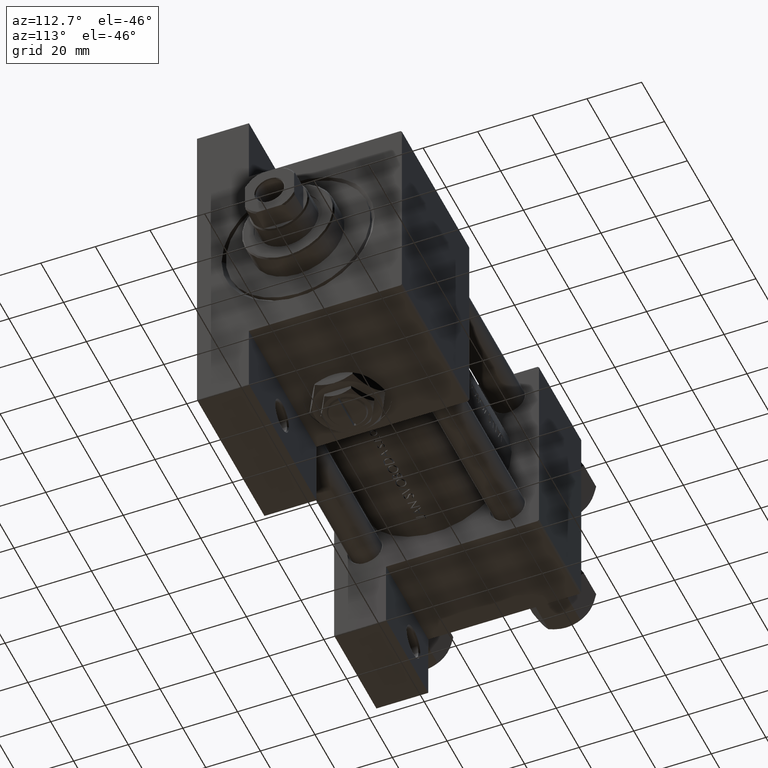
[diagram: clean part render]
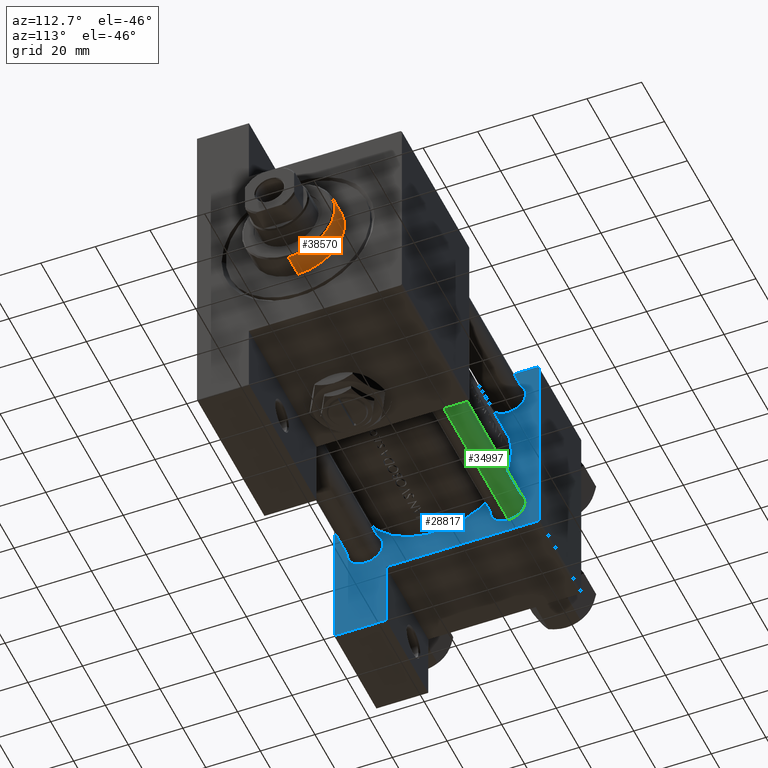
[diagram: same view with three faces highlighted in distinct colors, each labeled with its STEP entity id]
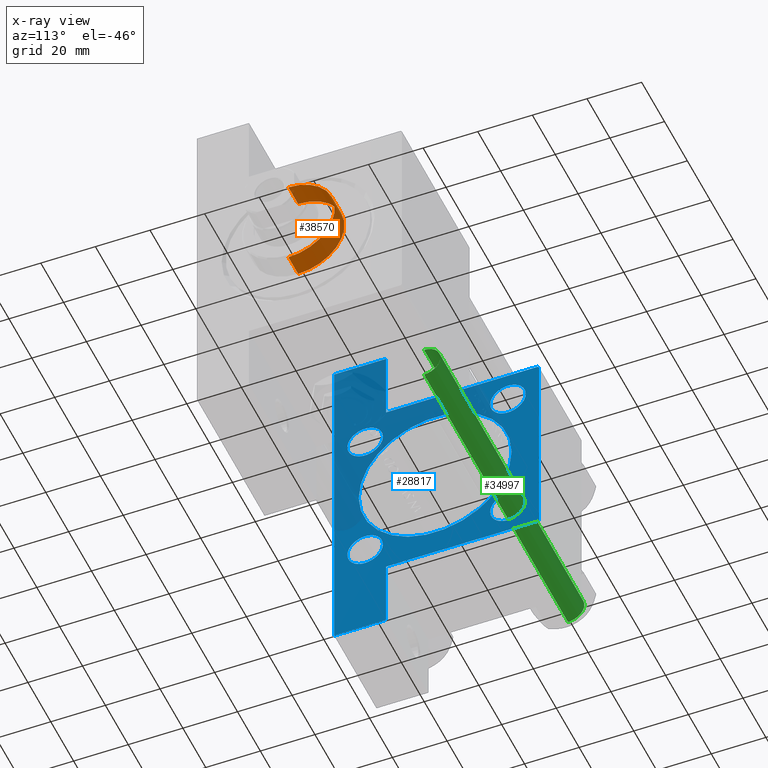
[diagram: x-ray of the same camera — body ghosted, the three highlighted faces saturated]
A machine part, auxiliary view with three faces highlighted in distinct colors.
The next image is the same camera in x-ray (body ghosted, the three faces saturated) — at least one of them is partly hidden behind the body in this view.
Their STEP definitions:

[orange] entity #38570 — the highlighted cylindrical surface (partial cylindrical patch) has radius 17 mm, axis along (-1, -0, 0).
#817 = ORIENTED_EDGE ( 'NONE', *, *, #44496, .F. ) ;
#1502 = CARTESIAN_POINT ( 'NONE',  ( 17.00000000000000000, 2.081899558550500280E-15, 37.69999999999999574 ) ) ;
#1532 = VERTEX_POINT ( 'NONE', #40341 ) ;
#2553 = VERTEX_POINT ( 'NONE', #3411 ) ;
#3411 = CARTESIAN_POINT ( 'NONE',  ( -17.00000000000000000, 0.000000000000000000, 37.19999999999999574 ) ) ;
#3577 = EDGE_LOOP ( 'NONE', ( #6811, #22954, #36848, #817 ) ) ;
#4502 = LINE ( 'NONE', #1502, #19860 ) ;
#6811 = ORIENTED_EDGE ( 'NONE', *, *, #14480, .T. ) ;
#7029 = LINE ( 'NONE', #41130, #27732 ) ;
#12876 = AXIS2_PLACEMENT_3D ( 'NONE', #14812, #44189, #26029 ) ;
#14480 = EDGE_CURVE ( 'NONE', #2553, #40876, #32761, .T. ) ;
#14812 = CARTESIAN_POINT ( 'NONE',  ( 0.000000000000000000, 0.000000000000000000, 37.19999999999999574 ) ) ;
#16169 = DIRECTION ( 'NONE',  ( -1.000000000000000000, 0.000000000000000000, 0.000000000000000000 ) ) ;
#18875 = VERTEX_POINT ( 'NONE', #37075 ) ;
#19410 = CYLINDRICAL_SURFACE ( 'NONE', #34600, 17.00000000000000000 ) ;
#19860 = VECTOR ( 'NONE', #35868, 1000.000000000000000 ) ;
#21727 = EDGE_CURVE ( 'NONE', #40876, #18875, #4502, .T. ) ;
#22954 = ORIENTED_EDGE ( 'NONE', *, *, #21727, .T. ) ;
#23400 = CARTESIAN_POINT ( 'NONE',  ( 0.000000000000000000, 0.000000000000000000, 37.69999999999999574 ) ) ;
#24037 = AXIS2_PLACEMENT_3D ( 'NONE', #48338, #37372, #41598 ) ;
#26029 = DIRECTION ( 'NONE',  ( 1.000000000000000000, 0.000000000000000000, 0.000000000000000000 ) ) ;
#26235 = EDGE_CURVE ( 'NONE', #18875, #1532, #27992, .T. ) ;
#26642 = CARTESIAN_POINT ( 'NONE',  ( 17.00000000000000000, 2.081899558550500280E-15, 37.19999999999999574 ) ) ;
#27732 = VECTOR ( 'NONE', #37414, 1000.000000000000000 ) ;
#27992 = CIRCLE ( 'NONE', #24037, 17.00000000000000000 ) ;
#30865 = DIRECTION ( 'NONE',  ( -0.000000000000000000, -0.000000000000000000, -1.000000000000000000 ) ) ;
#32761 = CIRCLE ( 'NONE', #12876, 17.00000000000000000 ) ;
#34592 = FACE_OUTER_BOUND ( 'NONE', #3577, .T. ) ;
#34600 = AXIS2_PLACEMENT_3D ( 'NONE', #23400, #30865, #16169 ) ;
#35868 = DIRECTION ( 'NONE',  ( -0.000000000000000000, -0.000000000000000000, -1.000000000000000000 ) ) ;
#36848 = ORIENTED_EDGE ( 'NONE', *, *, #26235, .T. ) ;
#37075 = CARTESIAN_POINT ( 'NONE',  ( 17.00000000000000000, 2.081899558550500280E-15, 28.69999999999999929 ) ) ;
#37372 = DIRECTION ( 'NONE',  ( 0.000000000000000000, 0.000000000000000000, 1.000000000000000000 ) ) ;
#37414 = DIRECTION ( 'NONE',  ( -0.000000000000000000, -0.000000000000000000, -1.000000000000000000 ) ) ;
#38570 = ADVANCED_FACE ( 'NONE', ( #34592 ), #19410, .T. ) ;
#40341 = CARTESIAN_POINT ( 'NONE',  ( -17.00000000000000000, 0.000000000000000000, 28.69999999999999929 ) ) ;
#40876 = VERTEX_POINT ( 'NONE', #26642 ) ;
#41130 = CARTESIAN_POINT ( 'NONE',  ( -17.00000000000000000, 0.000000000000000000, 37.69999999999999574 ) ) ;
#41598 = DIRECTION ( 'NONE',  ( 1.000000000000000000, 0.000000000000000000, 0.000000000000000000 ) ) ;
#44189 = DIRECTION ( 'NONE',  ( 0.000000000000000000, 0.000000000000000000, -1.000000000000000000 ) ) ;
#44496 = EDGE_CURVE ( 'NONE', #2553, #1532, #7029, .T. ) ;
#48338 = CARTESIAN_POINT ( 'NONE',  ( 0.000000000000000000, 0.000000000000000000, 28.69999999999999929 ) ) ;

[blue] entity #28817 — the highlighted planar face has unit normal (-1, 0, -0).
#40 = CIRCLE ( 'NONE', #18333, 6.500000000000057732 ) ;
#344 = AXIS2_PLACEMENT_3D ( 'NONE', #44675, #21775, #40930 ) ;
#385 = EDGE_LOOP ( 'NONE', ( #5682, #46486, #6682, #3144, #41448, #947, #35732, #32918, #8256, #8322 ) ) ;
#597 = FACE_BOUND ( 'NONE', #7028, .T. ) ;
#798 = DIRECTION ( 'NONE',  ( 0.000000000000000000, -1.734723475976806848E-16, -1.000000000000000000 ) ) ;
#914 = CIRCLE ( 'NONE', #28757, 6.499999999999981348 ) ;
#947 = ORIENTED_EDGE ( 'NONE', *, *, #48349, .F. ) ;
#1105 = ORIENTED_EDGE ( 'NONE', *, *, #37034, .T. ) ;
#1846 = VECTOR ( 'NONE', #18621, 1000.000000000000000 ) ;
#1865 = CARTESIAN_POINT ( 'NONE',  ( 37.00000000000001421, 63.50000000000000000, -18.50000000000000355 ) ) ;
#2401 = VECTOR ( 'NONE', #7654, 1000.000000000000000 ) ;
#2716 = VERTEX_POINT ( 'NONE', #1865 ) ;
#3085 = VECTOR ( 'NONE', #13676, 1000.000000000000000 ) ;
#3099 = VERTEX_POINT ( 'NONE', #31096 ) ;
#3144 = ORIENTED_EDGE ( 'NONE', *, *, #5348, .F. ) ;
#3456 = CARTESIAN_POINT ( 'NONE',  ( 37.00000000000000000, -37.50000000000000711, 37.49999999999999289 ) ) ;
#3857 = DIRECTION ( 'NONE',  ( 0.000000000000000000, -1.000000000000000000, -9.251858538542971581E-17 ) ) ;
#4008 = CARTESIAN_POINT ( 'NONE',  ( 37.00000000000000000, 36.99999999999999289, 37.50000000000000000 ) ) ;
#4219 = VERTEX_POINT ( 'NONE', #40751 ) ;
#4325 = AXIS2_PLACEMENT_3D ( 'NONE', #44187, #6343, #32992 ) ;
#4463 = EDGE_CURVE ( 'NONE', #24514, #40729, #43705, .T. ) ;
#4579 = LINE ( 'NONE', #42919, #42184 ) ;
#4836 = PLANE ( 'NONE',  #45568 ) ;
#5028 = CARTESIAN_POINT ( 'NONE',  ( 37.00000000000000000, 0.000000000000000000, -0.5000000000000004441 ) ) ;
#5078 = VERTEX_POINT ( 'NONE', #34527 ) ;
#5151 = CIRCLE ( 'NONE', #46519, 6.499999999999974243 ) ;
#5348 = EDGE_CURVE ( 'NONE', #4219, #33079, #21553, .T. ) ;
#5682 = ORIENTED_EDGE ( 'NONE', *, *, #10357, .T. ) ;
#5773 = EDGE_CURVE ( 'NONE', #3099, #19407, #4579, .T. ) ;
#5963 = LINE ( 'NONE', #9699, #3085 ) ;
#6191 = CARTESIAN_POINT ( 'NONE',  ( 37.00000000000000000, 37.49999999999999289, -37.50000000000000000 ) ) ;
#6343 = DIRECTION ( 'NONE',  ( -1.000000000000000000, 0.000000000000000000, -0.000000000000000000 ) ) ;
#6456 = EDGE_CURVE ( 'NONE', #28976, #2716, #18370, .T. ) ;
#6502 = DIRECTION ( 'NONE',  ( 0.000000000000000000, 0.000000000000000000, 1.000000000000000000 ) ) ;
#6634 = CIRCLE ( 'NONE', #26530, 28.00000000000000000 ) ;
#6682 = ORIENTED_EDGE ( 'NONE', *, *, #32625, .T. ) ;
#6915 = DIRECTION ( 'NONE',  ( -0.000000000000000000, -0.7071067811865474617, -0.7071067811865474617 ) ) ;
#6923 = DIRECTION ( 'NONE',  ( 0.000000000000000000, 9.251858538542971581E-17, -1.000000000000000000 ) ) ;
#7028 = EDGE_LOOP ( 'NONE', ( #35184, #38727 ) ) ;
#7496 = CARTESIAN_POINT ( 'NONE',  ( 37.00000000000000000, 26.14999999999999858, 26.15000000000000213 ) ) ;
#7646 = EDGE_CURVE ( 'NONE', #4219, #17229, #26976, .T. ) ;
#7654 = DIRECTION ( 'NONE',  ( 2.668805347656626678E-16, 1.000000000000000000, 0.000000000000000000 ) ) ;
#7829 = FACE_BOUND ( 'NONE', #40155, .T. ) ;
#7855 = VECTOR ( 'NONE', #6915, 1000.000000000000114 ) ;
#8256 = ORIENTED_EDGE ( 'NONE', *, *, #29578, .F. ) ;
#8322 = ORIENTED_EDGE ( 'NONE', *, *, #5773, .T. ) ;
#8863 = DIRECTION ( 'NONE',  ( -1.000000000000000000, 0.000000000000000000, -0.000000000000000000 ) ) ;
#9296 = CARTESIAN_POINT ( 'NONE',  ( 37.00000000000000000, 0.000000000000000000, 0.000000000000000000 ) ) ;
#9633 = EDGE_CURVE ( 'NONE', #5078, #48114, #40, .T. ) ;
#9699 = CARTESIAN_POINT ( 'NONE',  ( 37.00000000000001421, 63.50000000000001421, 26.72167621838005047 ) ) ;
#9844 = VERTEX_POINT ( 'NONE', #22719 ) ;
#10357 = EDGE_CURVE ( 'NONE', #19407, #24401, #45454, .T. ) ;
#10431 = DIRECTION ( 'NONE',  ( 0.000000000000000000, -1.000000000000000000, -9.251858538542972814E-17 ) ) ;
#11442 = VERTEX_POINT ( 'NONE', #17140 ) ;
#11503 = AXIS2_PLACEMENT_3D ( 'NONE', #7496, #38366, #11711 ) ;
#11561 = CARTESIAN_POINT ( 'NONE',  ( 37.00000000000000000, 26.14999999999999858, 19.65000000000002345 ) ) ;
#11711 = DIRECTION ( 'NONE',  ( 0.000000000000000000, 0.000000000000000000, 1.000000000000000000 ) ) ;
#12776 = VECTOR ( 'NONE', #3857, 1000.000000000000000 ) ;
#13207 = CARTESIAN_POINT ( 'NONE',  ( 37.00000000000000000, -37.50000000000000711, 36.99999999999999289 ) ) ;
#13447 = DIRECTION ( 'NONE',  ( 0.000000000000000000, 0.000000000000000000, 1.000000000000000000 ) ) ;
#13676 = DIRECTION ( 'NONE',  ( 0.000000000000000000, -1.734723475976806848E-16, -1.000000000000000000 ) ) ;
#14639 = CARTESIAN_POINT ( 'NONE',  ( 37.00000000000001421, 63.50000000000001421, -18.50000000000000355 ) ) ;
#15543 = ORIENTED_EDGE ( 'NONE', *, *, #4463, .T. ) ;
#15783 = FACE_OUTER_BOUND ( 'NONE', #385, .T. ) ;
#16285 = DIRECTION ( 'NONE',  ( -1.000000000000000000, 0.000000000000000000, -0.000000000000000000 ) ) ;
#16298 = EDGE_LOOP ( 'NONE', ( #42937, #15543 ) ) ;
#16543 = EDGE_CURVE ( 'NONE', #24401, #29102, #44770, .T. ) ;
#17140 = CARTESIAN_POINT ( 'NONE',  ( 37.00000000000000000, 26.14999999999999858, -32.64999999999997726 ) ) ;
#17229 = VERTEX_POINT ( 'NONE', #36997 ) ;
#17297 = DIRECTION ( 'NONE',  ( -1.000000000000000000, 0.000000000000000000, -0.000000000000000000 ) ) ;
#17372 = CARTESIAN_POINT ( 'NONE',  ( 37.00000000000000000, -37.50000000000000711, 36.99999999999999289 ) ) ;
#18203 = CARTESIAN_POINT ( 'NONE',  ( 37.00000000000000000, 0.000000000000000000, 27.50000000000000000 ) ) ;
#18333 = AXIS2_PLACEMENT_3D ( 'NONE', #34945, #31470, #30504 ) ;
#18370 = LINE ( 'NONE', #14639, #2401 ) ;
#18621 = DIRECTION ( 'NONE',  ( 0.000000000000000000, 0.000000000000000000, -1.000000000000000000 ) ) ;
#18703 = DIRECTION ( 'NONE',  ( -1.000000000000000000, 0.000000000000000000, -0.000000000000000000 ) ) ;
#18720 = AXIS2_PLACEMENT_3D ( 'NONE', #5028, #32636, #13447 ) ;
#18739 = CARTESIAN_POINT ( 'NONE',  ( 37.00000000000000711, 37.50000000000000711, -18.50000000000000355 ) ) ;
#18937 = CARTESIAN_POINT ( 'NONE',  ( 37.00000000000000000, 26.14999999999999858, 26.15000000000000213 ) ) ;
#19407 = VERTEX_POINT ( 'NONE', #4008 ) ;
#19574 = DIRECTION ( 'NONE',  ( 0.000000000000000000, 0.000000000000000000, 1.000000000000000000 ) ) ;
#19731 = CARTESIAN_POINT ( 'NONE',  ( 37.00000000000000000, -37.00000000000000711, 37.49999999999999289 ) ) ;
#21553 = LINE ( 'NONE', #36480, #31806 ) ;
#21775 = DIRECTION ( 'NONE',  ( -1.000000000000000000, 0.000000000000000000, -0.000000000000000000 ) ) ;
#22253 = AXIS2_PLACEMENT_3D ( 'NONE', #36234, #17297, #40431 ) ;
#22362 = LINE ( 'NONE', #33308, #1846 ) ;
#22719 = CARTESIAN_POINT ( 'NONE',  ( 37.00000000000001421, 63.50000000000000000, -37.50000000000002132 ) ) ;
#23030 = FACE_BOUND ( 'NONE', #34804, .T. ) ;
#23481 = CIRCLE ( 'NONE', #18720, 28.00000000000000000 ) ;
#23753 = DIRECTION ( 'NONE',  ( 0.000000000000000000, -0.7071067811865474617, 0.7071067811865474617 ) ) ;
#24164 = ORIENTED_EDGE ( 'NONE', *, *, #36481, .T. ) ;
#24256 = VERTEX_POINT ( 'NONE', #43674 ) ;
#24401 = VERTEX_POINT ( 'NONE', #19731 ) ;
#24514 = VERTEX_POINT ( 'NONE', #32178 ) ;
#26096 = CARTESIAN_POINT ( 'NONE',  ( 37.00000000000000000, 0.000000000000000000, -0.5000000000000004441 ) ) ;
#26106 = LINE ( 'NONE', #3456, #36130 ) ;
#26164 = EDGE_CURVE ( 'NONE', #39891, #36252, #914, .T. ) ;
#26434 = CARTESIAN_POINT ( 'NONE',  ( 37.00000000000000000, -37.50000000000000000, -18.50000000000000355 ) ) ;
#26530 = AXIS2_PLACEMENT_3D ( 'NONE', #26096, #33814, #41258 ) ;
#26625 = AXIS2_PLACEMENT_3D ( 'NONE', #35498, #42976, #19574 ) ;
#26821 = DIRECTION ( 'NONE',  ( 0.000000000000000000, 0.000000000000000000, 1.000000000000000000 ) ) ;
#26976 = LINE ( 'NONE', #27964, #31768 ) ;
#27516 = ORIENTED_EDGE ( 'NONE', *, *, #26164, .T. ) ;
#27552 = CARTESIAN_POINT ( 'NONE',  ( 37.00000000000000000, 26.14999999999999858, -26.15000000000000213 ) ) ;
#27964 = CARTESIAN_POINT ( 'NONE',  ( 37.00000000000000000, -63.49999999999998579, 26.72167621838007889 ) ) ;
#28757 = AXIS2_PLACEMENT_3D ( 'NONE', #18937, #18703, #6502 ) ;
#28817 = ADVANCED_FACE ( 'NONE', ( #7829, #23030, #34710, #38211, #597, #15783 ), #4836, .F. ) ;
#28976 = VERTEX_POINT ( 'NONE', #18739 ) ;
#29102 = VERTEX_POINT ( 'NONE', #13207 ) ;
#29578 = EDGE_CURVE ( 'NONE', #3099, #28976, #22362, .T. ) ;
#29631 = EDGE_CURVE ( 'NONE', #24256, #46954, #6634, .T. ) ;
#30030 = ORIENTED_EDGE ( 'NONE', *, *, #9633, .T. ) ;
#30504 = DIRECTION ( 'NONE',  ( 0.000000000000000000, 0.000000000000000000, 1.000000000000000000 ) ) ;
#30684 = CARTESIAN_POINT ( 'NONE',  ( 37.00000000000000000, -26.14999999999999147, 19.64999999999994529 ) ) ;
#31096 = CARTESIAN_POINT ( 'NONE',  ( 37.00000000000000000, 37.49999999999999289, 37.00000000000000000 ) ) ;
#31470 = DIRECTION ( 'NONE',  ( -1.000000000000000000, 0.000000000000000000, -0.000000000000000000 ) ) ;
#31768 = VECTOR ( 'NONE', #798, 1000.000000000000000 ) ;
#31806 = VECTOR ( 'NONE', #47469, 1000.000000000000000 ) ;
#32178 = CARTESIAN_POINT ( 'NONE',  ( 37.00000000000000000, -26.14999999999999147, 32.65000000000007674 ) ) ;
#32625 = EDGE_CURVE ( 'NONE', #29102, #33079, #26106, .T. ) ;
#32636 = DIRECTION ( 'NONE',  ( 1.000000000000000000, -0.000000000000000000, 0.000000000000000000 ) ) ;
#32918 = ORIENTED_EDGE ( 'NONE', *, *, #6456, .F. ) ;
#32964 = CIRCLE ( 'NONE', #4325, 6.500000000000064837 ) ;
#32992 = DIRECTION ( 'NONE',  ( 0.000000000000000000, 0.000000000000000000, 1.000000000000000000 ) ) ;
#33079 = VERTEX_POINT ( 'NONE', #26434 ) ;
#33308 = CARTESIAN_POINT ( 'NONE',  ( 37.00000000000000000, 37.49999999999999289, 37.50000000000000000 ) ) ;
#33621 = EDGE_CURVE ( 'NONE', #36252, #39891, #44886, .T. ) ;
#33814 = DIRECTION ( 'NONE',  ( 1.000000000000000000, -0.000000000000000000, 0.000000000000000000 ) ) ;
#34527 = CARTESIAN_POINT ( 'NONE',  ( 37.00000000000000000, -26.14999999999999147, -19.64999999999995239 ) ) ;
#34710 = FACE_BOUND ( 'NONE', #16298, .T. ) ;
#34804 = EDGE_LOOP ( 'NONE', ( #38760, #1105 ) ) ;
#34945 = CARTESIAN_POINT ( 'NONE',  ( 37.00000000000000000, -26.14999999999999147, -26.15000000000000924 ) ) ;
#35135 = CARTESIAN_POINT ( 'NONE',  ( 37.00000000000000000, 26.14999999999999858, -19.65000000000002700 ) ) ;
#35184 = ORIENTED_EDGE ( 'NONE', *, *, #38440, .F. ) ;
#35450 = DIRECTION ( 'NONE',  ( -0.000000000000000000, 0.000000000000000000, 1.000000000000000000 ) ) ;
#35498 = CARTESIAN_POINT ( 'NONE',  ( 37.00000000000000000, 26.14999999999999858, -26.15000000000000213 ) ) ;
#35710 = VERTEX_POINT ( 'NONE', #35135 ) ;
#35732 = ORIENTED_EDGE ( 'NONE', *, *, #48361, .F. ) ;
#36130 = VECTOR ( 'NONE', #6923, 1000.000000000000000 ) ;
#36177 = EDGE_CURVE ( 'NONE', #40729, #24514, #32964, .T. ) ;
#36234 = CARTESIAN_POINT ( 'NONE',  ( 37.00000000000000000, -26.14999999999999147, 26.15000000000000924 ) ) ;
#36252 = VERTEX_POINT ( 'NONE', #11561 ) ;
#36480 = CARTESIAN_POINT ( 'NONE',  ( 37.00000000000000000, -63.49999999999998579, -18.50000000000000355 ) ) ;
#36481 = EDGE_CURVE ( 'NONE', #48114, #5078, #42491, .T. ) ;
#36997 = CARTESIAN_POINT ( 'NONE',  ( 37.00000000000000000, -63.50000000000000000, -37.49999999999999289 ) ) ;
#37026 = EDGE_CURVE ( 'NONE', #11442, #35710, #48081, .T. ) ;
#37034 = EDGE_CURVE ( 'NONE', #35710, #11442, #5151, .T. ) ;
#38211 = FACE_BOUND ( 'NONE', #43499, .T. ) ;
#38366 = DIRECTION ( 'NONE',  ( -1.000000000000000000, 0.000000000000000000, -0.000000000000000000 ) ) ;
#38440 = EDGE_CURVE ( 'NONE', #46954, #24256, #23481, .T. ) ;
#38607 = CARTESIAN_POINT ( 'NONE',  ( 37.00000000000000000, -26.14999999999999147, -32.65000000000006963 ) ) ;
#38727 = ORIENTED_EDGE ( 'NONE', *, *, #29631, .F. ) ;
#38760 = ORIENTED_EDGE ( 'NONE', *, *, #37026, .T. ) ;
#39891 = VERTEX_POINT ( 'NONE', #42835 ) ;
#40155 = EDGE_LOOP ( 'NONE', ( #24164, #30030 ) ) ;
#40431 = DIRECTION ( 'NONE',  ( 0.000000000000000000, 0.000000000000000000, 1.000000000000000000 ) ) ;
#40729 = VERTEX_POINT ( 'NONE', #30684 ) ;
#40751 = CARTESIAN_POINT ( 'NONE',  ( 37.00000000000000000, -63.50000000000000000, -18.50000000000000355 ) ) ;
#40930 = DIRECTION ( 'NONE',  ( 0.000000000000000000, 0.000000000000000000, 1.000000000000000000 ) ) ;
#41258 = DIRECTION ( 'NONE',  ( 0.000000000000000000, 0.000000000000000000, 1.000000000000000000 ) ) ;
#41448 = ORIENTED_EDGE ( 'NONE', *, *, #7646, .T. ) ;
#41702 = CARTESIAN_POINT ( 'NONE',  ( 37.00000000000000000, 37.49999999999999289, 37.50000000000000000 ) ) ;
#42184 = VECTOR ( 'NONE', #23753, 1000.000000000000114 ) ;
#42491 = CIRCLE ( 'NONE', #344, 6.500000000000057732 ) ;
#42835 = CARTESIAN_POINT ( 'NONE',  ( 37.00000000000000000, 26.14999999999999858, 32.64999999999998437 ) ) ;
#42919 = CARTESIAN_POINT ( 'NONE',  ( 37.00000000000000000, 36.99999999999999289, 37.50000000000000000 ) ) ;
#42937 = ORIENTED_EDGE ( 'NONE', *, *, #36177, .T. ) ;
#42976 = DIRECTION ( 'NONE',  ( -1.000000000000000000, 0.000000000000000000, -0.000000000000000000 ) ) ;
#43499 = EDGE_LOOP ( 'NONE', ( #44418, #27516 ) ) ;
#43590 = VECTOR ( 'NONE', #10431, 1000.000000000000000 ) ;
#43674 = CARTESIAN_POINT ( 'NONE',  ( 37.00000000000000000, 3.429011037612588487E-15, -28.50000000000000000 ) ) ;
#43705 = CIRCLE ( 'NONE', #22253, 6.500000000000064837 ) ;
#44187 = CARTESIAN_POINT ( 'NONE',  ( 37.00000000000000000, -26.14999999999999147, 26.15000000000000924 ) ) ;
#44418 = ORIENTED_EDGE ( 'NONE', *, *, #33621, .T. ) ;
#44675 = CARTESIAN_POINT ( 'NONE',  ( 37.00000000000000000, -26.14999999999999147, -26.15000000000000924 ) ) ;
#44770 = LINE ( 'NONE', #17372, #7855 ) ;
#44886 = CIRCLE ( 'NONE', #11503, 6.499999999999981348 ) ;
#45454 = LINE ( 'NONE', #41702, #12776 ) ;
#45568 = AXIS2_PLACEMENT_3D ( 'NONE', #9296, #16285, #35450 ) ;
#46486 = ORIENTED_EDGE ( 'NONE', *, *, #16543, .T. ) ;
#46519 = AXIS2_PLACEMENT_3D ( 'NONE', #27552, #8863, #26821 ) ;
#46954 = VERTEX_POINT ( 'NONE', #18203 ) ;
#47469 = DIRECTION ( 'NONE',  ( -0.000000000000000000, 1.000000000000000000, 0.000000000000000000 ) ) ;
#48045 = LINE ( 'NONE', #6191, #43590 ) ;
#48081 = CIRCLE ( 'NONE', #26625, 6.499999999999974243 ) ;
#48114 = VERTEX_POINT ( 'NONE', #38607 ) ;
#48349 = EDGE_CURVE ( 'NONE', #9844, #17229, #48045, .T. ) ;
#48361 = EDGE_CURVE ( 'NONE', #2716, #9844, #5963, .T. ) ;

[green] entity #34997 — the highlighted cylindrical surface (edge-blend (fillet) strip) has radius 6 mm, axis along (1, -0, -0).
#1008 = EDGE_CURVE ( 'NONE', #31402, #3464, #18870, .T. ) ;
#2265 = ORIENTED_EDGE ( 'NONE', *, *, #1008, .F. ) ;
#2397 = AXIS2_PLACEMENT_3D ( 'NONE', #3790, #11989, #35144 ) ;
#3464 = VERTEX_POINT ( 'NONE', #11778 ) ;
#3790 = CARTESIAN_POINT ( 'NONE',  ( 0.000000000000000000, 0.000000000000000000, 126.4999999999999716 ) ) ;
#3890 = DIRECTION ( 'NONE',  ( -0.000000000000000000, -0.000000000000000000, -1.000000000000000000 ) ) ;
#4683 = DIRECTION ( 'NONE',  ( -1.000000000000000000, 0.000000000000000000, 0.000000000000000000 ) ) ;
#6393 = DIRECTION ( 'NONE',  ( 1.000000000000000000, 0.000000000000000000, 0.000000000000000000 ) ) ;
#7223 = VERTEX_POINT ( 'NONE', #23643 ) ;
#9827 = EDGE_CURVE ( 'NONE', #31402, #12594, #11145, .T. ) ;
#11145 = CIRCLE ( 'NONE', #2397, 6.000000000000000888 ) ;
#11778 = CARTESIAN_POINT ( 'NONE',  ( -6.000000000000000888, 0.000000000000000000, 0.5000000000000004441 ) ) ;
#11989 = DIRECTION ( 'NONE',  ( 0.000000000000000000, 0.000000000000000000, -1.000000000000000000 ) ) ;
#12594 = VERTEX_POINT ( 'NONE', #16420 ) ;
#12967 = CARTESIAN_POINT ( 'NONE',  ( -6.000000000000000888, 0.000000000000000000, 126.4999999999999716 ) ) ;
#14156 = LINE ( 'NONE', #15584, #41052 ) ;
#14935 = ORIENTED_EDGE ( 'NONE', *, *, #41876, .T. ) ;
#15584 = CARTESIAN_POINT ( 'NONE',  ( 6.000000000000000888, 7.347880794884120722E-16, 127.0000000000000000 ) ) ;
#16420 = CARTESIAN_POINT ( 'NONE',  ( 6.000000000000000888, 7.347880794884120722E-16, 126.4999999999999716 ) ) ;
#18084 = CARTESIAN_POINT ( 'NONE',  ( 0.000000000000000000, 0.000000000000000000, 0.5000000000000004441 ) ) ;
#18870 = LINE ( 'NONE', #45028, #45178 ) ;
#20216 = AXIS2_PLACEMENT_3D ( 'NONE', #46286, #27367, #4683 ) ;
#22961 = AXIS2_PLACEMENT_3D ( 'NONE', #18084, #37006, #6393 ) ;
#23643 = CARTESIAN_POINT ( 'NONE',  ( 6.000000000000000888, 7.347880794884120722E-16, 0.5000000000000004441 ) ) ;
#23681 = ORIENTED_EDGE ( 'NONE', *, *, #48645, .T. ) ;
#25253 = ORIENTED_EDGE ( 'NONE', *, *, #9827, .T. ) ;
#27367 = DIRECTION ( 'NONE',  ( -0.000000000000000000, -0.000000000000000000, -1.000000000000000000 ) ) ;
#28104 = FACE_OUTER_BOUND ( 'NONE', #44571, .T. ) ;
#28503 = CIRCLE ( 'NONE', #22961, 6.000000000000000888 ) ;
#31402 = VERTEX_POINT ( 'NONE', #12967 ) ;
#34057 = DIRECTION ( 'NONE',  ( -0.000000000000000000, -0.000000000000000000, -1.000000000000000000 ) ) ;
#34803 = CYLINDRICAL_SURFACE ( 'NONE', #20216, 6.000000000000000888 ) ;
#34997 = ADVANCED_FACE ( 'NONE', ( #28104 ), #34803, .T. ) ;
#35144 = DIRECTION ( 'NONE',  ( 1.000000000000000000, 0.000000000000000000, 0.000000000000000000 ) ) ;
#37006 = DIRECTION ( 'NONE',  ( -0.000000000000000000, -0.000000000000000000, 1.000000000000000000 ) ) ;
#41052 = VECTOR ( 'NONE', #3890, 1000.000000000000000 ) ;
#41876 = EDGE_CURVE ( 'NONE', #12594, #7223, #14156, .T. ) ;
#44571 = EDGE_LOOP ( 'NONE', ( #25253, #14935, #23681, #2265 ) ) ;
#45028 = CARTESIAN_POINT ( 'NONE',  ( -6.000000000000000888, 0.000000000000000000, 127.0000000000000000 ) ) ;
#45178 = VECTOR ( 'NONE', #34057, 1000.000000000000000 ) ;
#46286 = CARTESIAN_POINT ( 'NONE',  ( 0.000000000000000000, 0.000000000000000000, 127.0000000000000000 ) ) ;
#48645 = EDGE_CURVE ( 'NONE', #7223, #3464, #28503, .T. ) ;